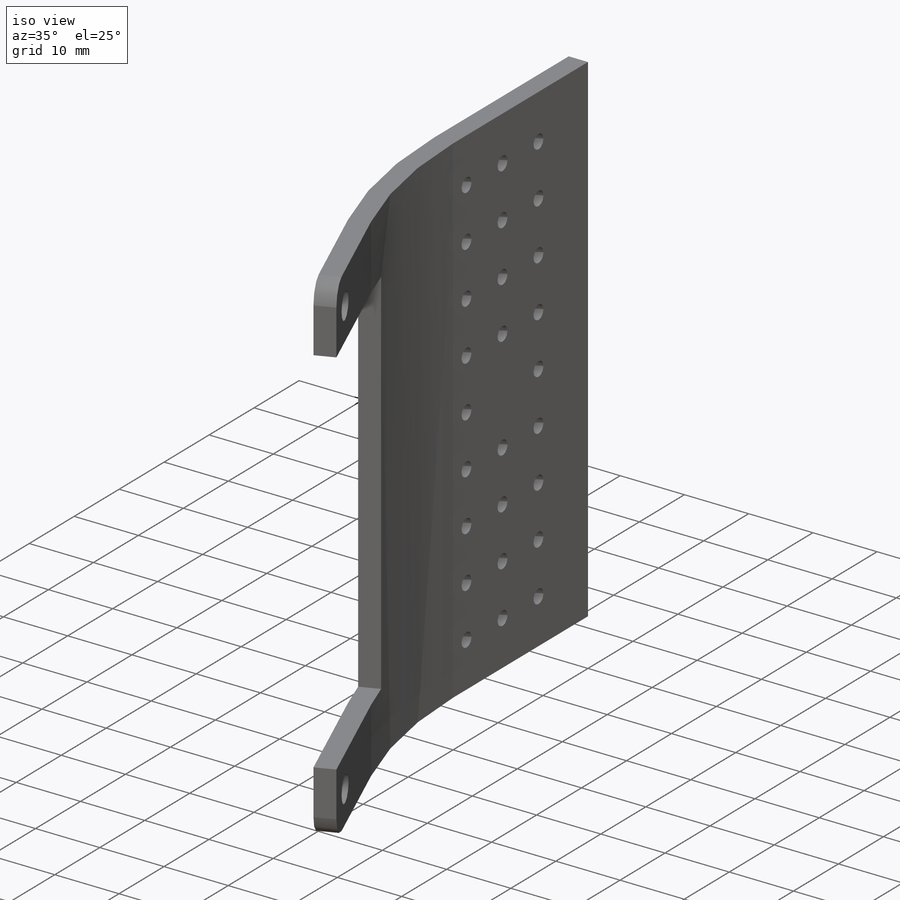
[diagram: iso view]
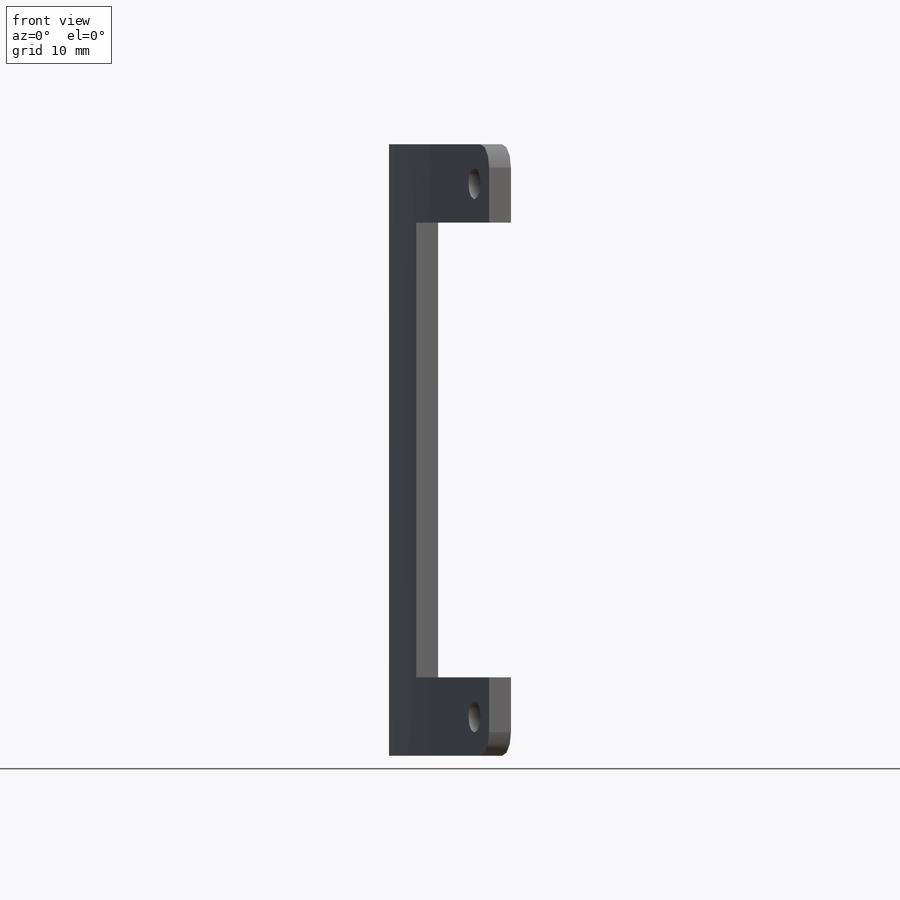
[diagram: front view]
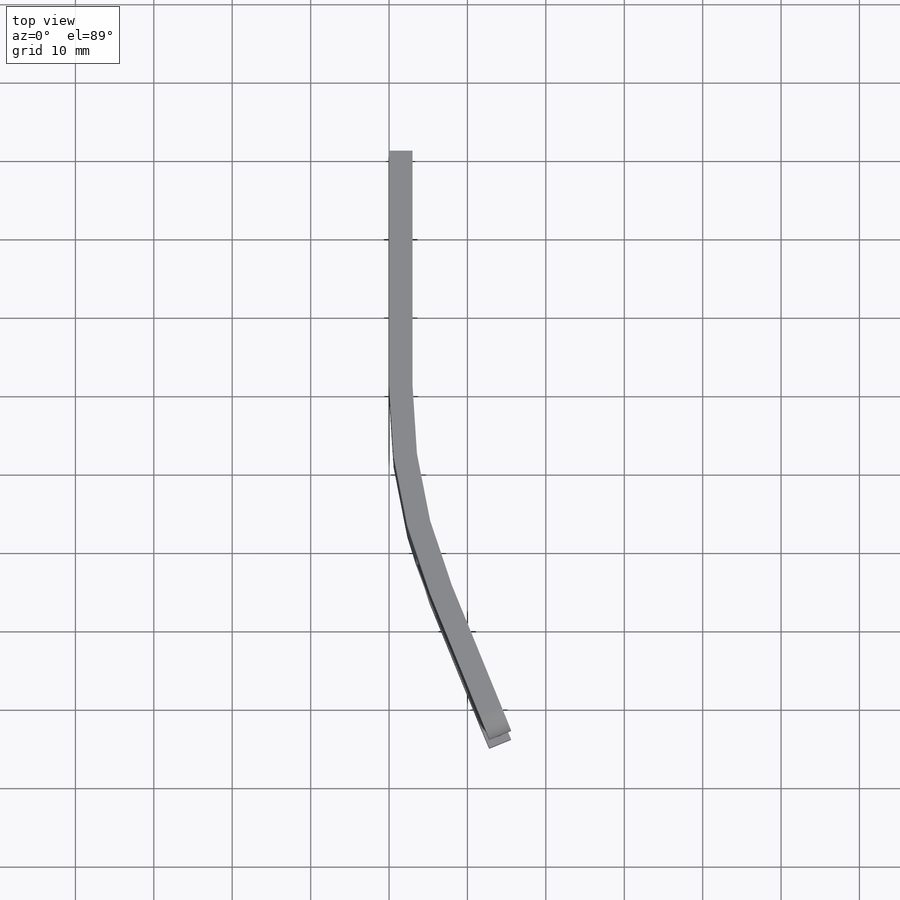
[diagram: top view]
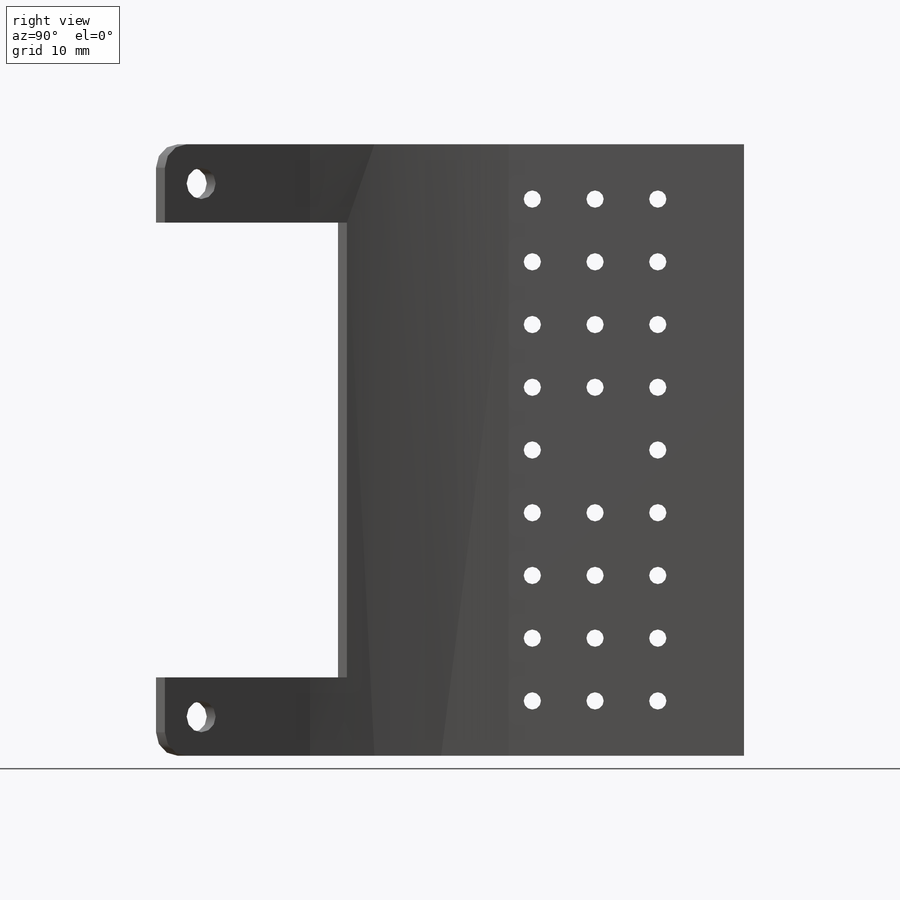
[diagram: right view]
SOLIDWORKS PART (.sldprt)
format: sldprt  version: not decoded by parser v0  size: 222,720 bytes
history: native  units: mm
features: plane x3, sketch x3, cut_extrude x2, material x1, extrude x1, fillet x1 (+9 scaffold rows collapsed)
feature tree (20):
  scaffold x9  (default folders/planes/origin — collapsed)
  material  "Material <not specified>"
  plane  "Face"
  plane  "Dessus"
  plane  "Droite"
  sketch  "Esquisse1"  dims[c1.D2=70.0mm c1.D8=5.0mm c1.D1=30.0mm c1.D3=130.0mm c1.D4=3.0mm c1.D5=3.0mm c2.D3=20.0mm c2.D6=75.0mm c2.D7=10.0mm c2.D8=~8.756389mm c3.D8=90.0deg]
  extrude  "Extrusion1"  Depth=78mm
  sketch  "Esquisse2"  dims[D3=4.0mm D1=10.0mm D2=25.0mm D4=5.0mm D5=5.0mm]
  cut_extrude  "Extrusion3"  [1 undecoded]
  fillet  "Congé1"  Radius=3mm
  sketch  "Esquisse3"  dims[D5=2.2mm D1=8.0mm D2=8.0mm D3=8.0mm D4=11.0mm D6=8.0mm D7=8.0mm D8=8.0mm]
  cut_extrude  "Extrusion4"  [1 undecoded]
decode coverage: 5 of 7 modeling features carry decoded parameters
note: ~ marks probable driven/reference dimensions
note: 2 parameter values undecoded
note: suppression state not decoded; provenance and decode notes live in map.json
